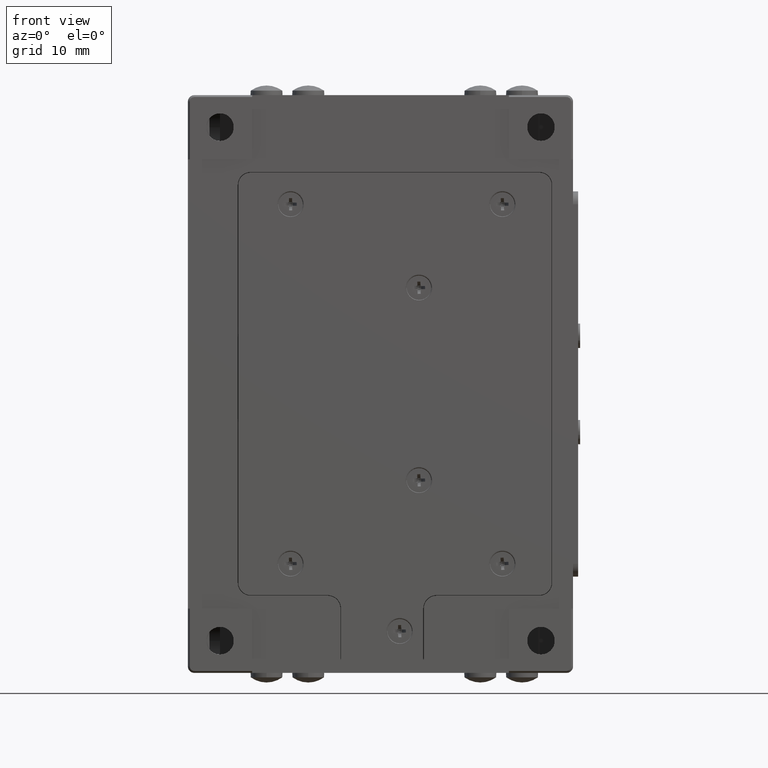
[diagram: clean part render]
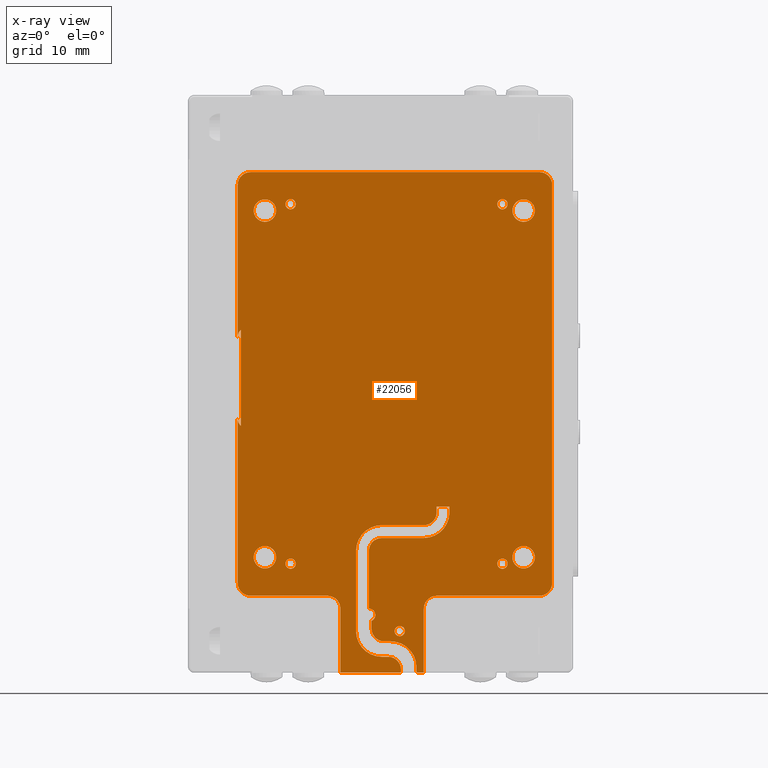
[diagram: x-ray — body ghosted, one internal face saturated and labeled with its STEP entity id]
A machine part, front view, then the same camera in x-ray: the body is ghosted and one INTERNAL B-rep face — a face not visible from any outside direction — is saturated and labeled: STEP entity #22056.
In plain terms, the highlighted planar face has unit normal (0, -1, 0).
Its self-contained STEP definition (entity closure, byte-faithful):
#69 = FACE_BOUND ( 'NONE', #16067, .T. ) ;
#123 = CARTESIAN_POINT ( 'NONE',  ( 33.20000000000000284, 3.250000000000000000, -87.50000000000000000 ) ) ;
#130 = AXIS2_PLACEMENT_3D ( 'NONE', #20657, #16018, #14065 ) ;
#148 = ORIENTED_EDGE ( 'NONE', *, *, #23933, .F. ) ;
#165 = LINE ( 'NONE', #19575, #1136 ) ;
#245 = CARTESIAN_POINT ( 'NONE',  ( 16.00000000000000000, 3.250000000000000000, -17.00000000000000000 ) ) ;
#367 = VECTOR ( 'NONE', #8052, 1000.000000000000000 ) ;
#460 = ORIENTED_EDGE ( 'NONE', *, *, #10625, .T. ) ;
#487 = DIRECTION ( 'NONE',  ( 0.000000000000000000, 0.000000000000000000, -1.000000000000000000 ) ) ;
#583 = EDGE_CURVE ( 'NONE', #7504, #11845, #14978, .T. ) ;
#597 = VERTEX_POINT ( 'NONE', #26319 ) ;
#640 = VERTEX_POINT ( 'NONE', #5210 ) ;
#665 = DIRECTION ( 'NONE',  ( 0.000000000000000000, 0.000000000000000000, -1.000000000000000000 ) ) ;
#711 = CARTESIAN_POINT ( 'NONE',  ( 7.750000000000000000, 3.250000000000000000, -76.00000000000000000 ) ) ;
#726 = CARTESIAN_POINT ( 'NONE',  ( 38.75000000000000000, 3.250000000000000000, -65.00000000000000000 ) ) ;
#840 = CARTESIAN_POINT ( 'NONE',  ( 21.75000000000000000, 3.250000000000000000, -78.00000000000000000 ) ) ;
#1053 = ORIENTED_EDGE ( 'NONE', *, *, #8525, .T. ) ;
#1060 = DIRECTION ( 'NONE',  ( 0.000000000000000000, -1.000000000000000000, 0.000000000000000000 ) ) ;
#1092 = CARTESIAN_POINT ( 'NONE',  ( 52.29999999999999716, 3.250000000000000000, -16.25000000000000000 ) ) ;
#1101 = CARTESIAN_POINT ( 'NONE',  ( 36.75000000000000000, 3.250000000000000000, -90.00000000000000000 ) ) ;
#1136 = VECTOR ( 'NONE', #13541, 1000.000000000000000 ) ;
#1143 = VECTOR ( 'NONE', #6798, 1000.000000000000000 ) ;
#1155 = CARTESIAN_POINT ( 'NONE',  ( 23.75000000000000000, 3.250000000000000000, -80.00000000000000000 ) ) ;
#1260 = CARTESIAN_POINT ( 'NONE',  ( 49.00000000000000000, 3.250000000000000000, -73.80000000000001137 ) ) ;
#1274 = DIRECTION ( 'NONE',  ( 0.000000000000000000, 0.000000000000000000, -1.000000000000000000 ) ) ;
#1344 = VERTEX_POINT ( 'NONE', #14890 ) ;
#1425 = ORIENTED_EDGE ( 'NONE', *, *, #7296, .F. ) ;
#1483 = DIRECTION ( 'NONE',  ( 0.000000000000000000, -1.000000000000000000, 0.000000000000000000 ) ) ;
#1540 = CARTESIAN_POINT ( 'NONE',  ( 36.75000000000000000, 3.250000000000000000, -67.00000000000000000 ) ) ;
#1792 = AXIS2_PLACEMENT_3D ( 'NONE', #15500, #4809, #8913 ) ;
#1818 = VERTEX_POINT ( 'NONE', #14314 ) ;
#1938 = VERTEX_POINT ( 'NONE', #13300 ) ;
#2022 = CARTESIAN_POINT ( 'NONE',  ( 35.89999999999999858, 3.250000000000000000, -90.00000000000000000 ) ) ;
#2039 = DIRECTION ( 'NONE',  ( 0.000000000000000000, 1.000000000000000000, 0.000000000000000000 ) ) ;
#2090 = DIRECTION ( 'NONE',  ( 0.000000000000000000, -1.000000000000000000, 0.000000000000000000 ) ) ;
#2354 = ORIENTED_EDGE ( 'NONE', *, *, #24428, .T. ) ;
#2382 = CIRCLE ( 'NONE', #5499, 1.500000000000001332 ) ;
#2489 = EDGE_CURVE ( 'NONE', #15399, #4415, #25739, .T. ) ;
#2508 = VERTEX_POINT ( 'NONE', #20242 ) ;
#2546 = DIRECTION ( 'NONE',  ( 0.000000000000000000, 0.000000000000000000, -1.000000000000000000 ) ) ;
#2560 = DIRECTION ( 'NONE',  ( 0.000000000000000000, 0.000000000000000000, -1.000000000000000000 ) ) ;
#2609 = EDGE_CURVE ( 'NONE', #3318, #13796, #23031, .T. ) ;
#2657 = AXIS2_PLACEMENT_3D ( 'NONE', #10025, #3811, #19149 ) ;
#2664 = EDGE_CURVE ( 'NONE', #7854, #24567, #11834, .T. ) ;
#2737 = DIRECTION ( 'NONE',  ( 0.000000000000000000, -1.000000000000000000, 0.000000000000000000 ) ) ;
#2774 = CARTESIAN_POINT ( 'NONE',  ( 12.00000000000000000, 3.250000000000000000, -70.25000000000000000 ) ) ;
#2998 = FACE_BOUND ( 'NONE', #20172, .T. ) ;
#3067 = ORIENTED_EDGE ( 'NONE', *, *, #23887, .T. ) ;
#3173 = DIRECTION ( 'NONE',  ( 0.000000000000000000, 0.000000000000000000, -1.000000000000000000 ) ) ;
#3250 = CARTESIAN_POINT ( 'NONE',  ( 52.29999999999999716, 3.250000000000000000, -72.00000000000000000 ) ) ;
#3299 = ORIENTED_EDGE ( 'NONE', *, *, #23348, .T. ) ;
#3305 = CARTESIAN_POINT ( 'NONE',  ( 23.75000000000000000, 3.250000000000000000, -90.00000000000000000 ) ) ;
#3318 = VERTEX_POINT ( 'NONE', #13722 ) ;
#3346 = CARTESIAN_POINT ( 'NONE',  ( 54.75000000000000000, 3.250000000000000000, -76.00000000000000000 ) ) ;
#3382 = AXIS2_PLACEMENT_3D ( 'NONE', #3250, #27034, #22951 ) ;
#3404 = AXIS2_PLACEMENT_3D ( 'NONE', #26242, #24548, #13595 ) ;
#3406 = DIRECTION ( 'NONE',  ( -2.102695122396129669E-16, 0.000000000000000000, 1.000000000000000000 ) ) ;
#3498 = CARTESIAN_POINT ( 'NONE',  ( 49.00000000000000000, 3.250000000000000000, -17.00000000000000000 ) ) ;
#3550 = ORIENTED_EDGE ( 'NONE', *, *, #14088, .F. ) ;
#3739 = EDGE_CURVE ( 'NONE', #13203, #640, #18398, .T. ) ;
#3747 = LINE ( 'NONE', #7560, #4111 ) ;
#3748 = VERTEX_POINT ( 'NONE', #6505 ) ;
#3782 = DIRECTION ( 'NONE',  ( 1.000000000000000000, 0.000000000000000000, 0.000000000000000000 ) ) ;
#3811 = DIRECTION ( 'NONE',  ( 0.000000000000000000, 1.000000000000000000, 0.000000000000000000 ) ) ;
#3982 = EDGE_CURVE ( 'NONE', #24400, #4739, #8047, .T. ) ;
#4059 = DIRECTION ( 'NONE',  ( 0.000000000000000000, 0.000000000000000000, -1.000000000000000000 ) ) ;
#4092 = CARTESIAN_POINT ( 'NONE',  ( 28.19999999999999929, 3.250000000000000000, -69.00000000000000000 ) ) ;
#4111 = VECTOR ( 'NONE', #25134, 1000.000000000000000 ) ;
#4331 = CARTESIAN_POINT ( 'NONE',  ( 54.75000000000000000, 3.250000000000000000, -78.00000000000000000 ) ) ;
#4415 = VERTEX_POINT ( 'NONE', #5898 ) ;
#4432 = LINE ( 'NONE', #16962, #27700 ) ;
#4478 = ORIENTED_EDGE ( 'NONE', *, *, #22900, .F. ) ;
#4595 = DIRECTION ( 'NONE',  ( 0.000000000000000000, 0.000000000000000000, -1.000000000000000000 ) ) ;
#4650 = CARTESIAN_POINT ( 'NONE',  ( 9.750000000000000000, 3.250000000000000000, -78.00000000000000000 ) ) ;
#4739 = VERTEX_POINT ( 'NONE', #19653 ) ;
#4758 = EDGE_LOOP ( 'NONE', ( #148, #9787 ) ) ;
#4790 = ORIENTED_EDGE ( 'NONE', *, *, #16657, .F. ) ;
#4809 = DIRECTION ( 'NONE',  ( 0.000000000000000000, -1.000000000000000000, 0.000000000000000000 ) ) ;
#5020 = ORIENTED_EDGE ( 'NONE', *, *, #16351, .F. ) ;
#5115 = ORIENTED_EDGE ( 'NONE', *, *, #12979, .F. ) ;
#5146 = CIRCLE ( 'NONE', #27655, 1.750000000000001554 ) ;
#5210 = CARTESIAN_POINT ( 'NONE',  ( 49.00000000000000000, 3.250000000000000000, -72.20000000000000284 ) ) ;
#5496 = EDGE_CURVE ( 'NONE', #1344, #13234, #25869, .T. ) ;
#5499 = AXIS2_PLACEMENT_3D ( 'NONE', #25104, #18216, #22441 ) ;
#5557 = EDGE_CURVE ( 'NONE', #8955, #25053, #23907, .T. ) ;
#5561 = CARTESIAN_POINT ( 'NONE',  ( 56.75000000000000000, 3.250000000000000000, -12.00000000000000000 ) ) ;
#5570 = CIRCLE ( 'NONE', #14119, 0.7999999999999882760 ) ;
#5616 = CARTESIAN_POINT ( 'NONE',  ( 38.75000000000000000, 3.250000000000000000, -80.00000000000000000 ) ) ;
#5622 = VERTEX_POINT ( 'NONE', #11284 ) ;
#5628 = CIRCLE ( 'NONE', #11437, 0.7999999999999951594 ) ;
#5646 = CARTESIAN_POINT ( 'NONE',  ( 36.75000000000000000, 3.250000000000000000, -80.00000000000000000 ) ) ;
#5687 = CARTESIAN_POINT ( 'NONE',  ( 33.00000000000000000, 3.250000000000000000, -82.69999999999998863 ) ) ;
#5735 = VERTEX_POINT ( 'NONE', #26298 ) ;
#5748 = DIRECTION ( 'NONE',  ( 1.182766006347821876E-16, 0.000000000000000000, -1.000000000000000000 ) ) ;
#5812 = AXIS2_PLACEMENT_3D ( 'NONE', #14295, #1483, #665 ) ;
#5814 = EDGE_CURVE ( 'NONE', #15601, #10556, #18704, .T. ) ;
#5898 = CARTESIAN_POINT ( 'NONE',  ( 33.00000000000000000, 3.250000000000000000, -84.29999999999999716 ) ) ;
#5926 = ORIENTED_EDGE ( 'NONE', *, *, #26071, .T. ) ;
#6008 = CIRCLE ( 'NONE', #26656, 1.750000000000001554 ) ;
#6018 = EDGE_LOOP ( 'NONE', ( #15100, #17256 ) ) ;
#6048 = EDGE_CURVE ( 'NONE', #21096, #3748, #8286, .T. ) ;
#6090 = CARTESIAN_POINT ( 'NONE',  ( 7.750000000000000000, 3.250000000000000000, -12.00000000000000000 ) ) ;
#6131 = CARTESIAN_POINT ( 'NONE',  ( 52.29999999999999716, 3.250000000000000000, -72.00000000000000000 ) ) ;
#6224 = DIRECTION ( 'NONE',  ( 0.000000000000000000, -1.000000000000000000, 0.000000000000000000 ) ) ;
#6304 = LINE ( 'NONE', #19094, #22512 ) ;
#6332 = EDGE_CURVE ( 'NONE', #20941, #17381, #3747, .T. ) ;
#6392 = DIRECTION ( 'NONE',  ( 0.000000000000000000, 0.000000000000000000, -1.000000000000000000 ) ) ;
#6429 = DIRECTION ( 'NONE',  ( 0.000000000000000000, 0.000000000000000000, -1.000000000000000000 ) ) ;
#6505 = CARTESIAN_POINT ( 'NONE',  ( 30.59999999999999787, 3.250000000000000000, -85.09999999999999432 ) ) ;
#6565 = DIRECTION ( 'NONE',  ( 1.000000000000000000, 0.000000000000000000, 0.000000000000000000 ) ) ;
#6620 = DIRECTION ( 'NONE',  ( 0.000000000000000000, 0.000000000000000000, -1.000000000000000000 ) ) ;
#6703 = CIRCLE ( 'NONE', #5812, 1.750000000000001554 ) ;
#6747 = CARTESIAN_POINT ( 'NONE',  ( 28.60000000000000142, 3.250000000000000000, -85.09999999999999432 ) ) ;
#6779 = CARTESIAN_POINT ( 'NONE',  ( 33.00000000000000000, 3.250000000000000000, -83.50000000000000000 ) ) ;
#6786 = LINE ( 'NONE', #10765, #18775 ) ;
#6798 = DIRECTION ( 'NONE',  ( 0.000000000000000000, 0.000000000000000000, -1.000000000000000000 ) ) ;
#6819 = ORIENTED_EDGE ( 'NONE', *, *, #9699, .T. ) ;
#6843 = LINE ( 'NONE', #26253, #12601 ) ;
#6861 = EDGE_CURVE ( 'NONE', #640, #13203, #23450, .T. ) ;
#6939 = DIRECTION ( 'NONE',  ( 0.000000000000000000, -1.000000000000000000, 0.000000000000000000 ) ) ;
#7039 = VECTOR ( 'NONE', #27100, 1000.000000000000000 ) ;
#7043 = EDGE_LOOP ( 'NONE', ( #9087, #23175, #20224, #13014, #23721, #14462, #8447, #3550, #5115, #15454, #18654, #9834, #18814, #20067, #22531, #22809, #16986, #8710, #10809, #1053, #6819, #21734, #3299, #20520, #8915, #27125, #26897, #460, #5926, #10007, #21724, #24292, #19964, #7902, #5020, #11984, #1425, #21885, #13964, #3067, #15577, #2354 ) ) ;
#7055 = DIRECTION ( 'NONE',  ( 0.000000000000000000, 1.000000000000000000, 0.000000000000000000 ) ) ;
#7113 = CARTESIAN_POINT ( 'NONE',  ( 12.00000000000000000, 3.250000000000000000, -73.75000000000000000 ) ) ;
#7126 = EDGE_CURVE ( 'NONE', #27404, #10643, #10413, .T. ) ;
#7296 = EDGE_CURVE ( 'NONE', #1344, #24567, #19522, .T. ) ;
#7355 = VERTEX_POINT ( 'NONE', #4331 ) ;
#7426 = DIRECTION ( 'NONE',  ( 0.000000000000000000, -1.000000000000000000, 0.000000000000000000 ) ) ;
#7504 = VERTEX_POINT ( 'NONE', #9254 ) ;
#7560 = CARTESIAN_POINT ( 'NONE',  ( 23.75000000000000000, 3.250000000000000000, -90.00000000000000000 ) ) ;
#7633 = EDGE_CURVE ( 'NONE', #26443, #25547, #24166, .T. ) ;
#7686 = LINE ( 'NONE', #5561, #7039 ) ;
#7728 = DIRECTION ( 'NONE',  ( 0.000000000000000000, 0.000000000000000000, -1.000000000000000000 ) ) ;
#7758 = LINE ( 'NONE', #7908, #14018 ) ;
#7806 = CARTESIAN_POINT ( 'NONE',  ( 30.59999999999999787, 3.250000000000000000, -83.09999999999999432 ) ) ;
#7854 = VERTEX_POINT ( 'NONE', #21318 ) ;
#7902 = ORIENTED_EDGE ( 'NONE', *, *, #583, .T. ) ;
#7908 = CARTESIAN_POINT ( 'NONE',  ( 56.75000000000000000, 3.250000000000000000, -78.00000000000000000 ) ) ;
#7934 = DIRECTION ( 'NONE',  ( 0.000000000000000000, -1.000000000000000000, 0.000000000000000000 ) ) ;
#7959 = DIRECTION ( 'NONE',  ( 0.000000000000000000, -1.000000000000000000, 0.000000000000000000 ) ) ;
#8001 = LINE ( 'NONE', #16999, #8590 ) ;
#8008 = CARTESIAN_POINT ( 'NONE',  ( 26.20000000000000284, 3.250000000000000000, -83.50000000000000000 ) ) ;
#8047 = CIRCLE ( 'NONE', #2657, 1.500000000000001332 ) ;
#8052 = DIRECTION ( 'NONE',  ( 0.000000000000000000, 0.000000000000000000, 1.000000000000000000 ) ) ;
#8109 = EDGE_CURVE ( 'NONE', #11901, #1818, #2382, .T. ) ;
#8190 = VERTEX_POINT ( 'NONE', #20602 ) ;
#8286 = LINE ( 'NONE', #16859, #8767 ) ;
#8367 = AXIS2_PLACEMENT_3D ( 'NONE', #23504, #10589, #23374 ) ;
#8440 = LINE ( 'NONE', #21104, #16987 ) ;
#8447 = ORIENTED_EDGE ( 'NONE', *, *, #20987, .F. ) ;
#8476 = CARTESIAN_POINT ( 'NONE',  ( 12.00000000000000000, 3.250000000000000000, -19.75000000000000000 ) ) ;
#8486 = CARTESIAN_POINT ( 'NONE',  ( 16.00000000000000000, 3.250000000000000000, -17.80000000000000071 ) ) ;
#8517 = DIRECTION ( 'NONE',  ( 0.000000000000000000, -1.000000000000000000, 0.000000000000000000 ) ) ;
#8525 = EDGE_CURVE ( 'NONE', #22054, #20841, #7758, .T. ) ;
#8570 = ORIENTED_EDGE ( 'NONE', *, *, #7126, .F. ) ;
#8590 = VECTOR ( 'NONE', #5748, 1000.000000000000000 ) ;
#8648 = FACE_BOUND ( 'NONE', #20744, .T. ) ;
#8673 = ORIENTED_EDGE ( 'NONE', *, *, #25352, .F. ) ;
#8686 = DIRECTION ( 'NONE',  ( 0.000000000000000000, -1.000000000000000000, 0.000000000000000000 ) ) ;
#8710 = ORIENTED_EDGE ( 'NONE', *, *, #10627, .T. ) ;
#8764 = CIRCLE ( 'NONE', #13713, 0.9999999999999870104 ) ;
#8767 = VECTOR ( 'NONE', #21350, 1000.000000000000000 ) ;
#8770 = AXIS2_PLACEMENT_3D ( 'NONE', #19196, #8517, #17090 ) ;
#8787 = CIRCLE ( 'NONE', #24500, 0.7999999999999882760 ) ;
#8870 = LINE ( 'NONE', #6747, #14300 ) ;
#8877 = DIRECTION ( 'NONE',  ( 1.000000000000000000, 0.000000000000000000, 0.000000000000000000 ) ) ;
#8913 = DIRECTION ( 'NONE',  ( 0.000000000000000000, 0.000000000000000000, -1.000000000000000000 ) ) ;
#8915 = ORIENTED_EDGE ( 'NONE', *, *, #3982, .T. ) ;
#8955 = VERTEX_POINT ( 'NONE', #12684 ) ;
#9068 = DIRECTION ( 'NONE',  ( 0.000000000000000000, 0.000000000000000000, -1.000000000000000000 ) ) ;
#9087 = ORIENTED_EDGE ( 'NONE', *, *, #23311, .F. ) ;
#9175 = VERTEX_POINT ( 'NONE', #1092 ) ;
#9225 = DIRECTION ( 'NONE',  ( 0.000000000000000000, 0.000000000000000000, -1.000000000000000000 ) ) ;
#9254 = CARTESIAN_POINT ( 'NONE',  ( 32.89999999999999858, 3.250000000000000000, -90.00000000000000000 ) ) ;
#9255 = AXIS2_PLACEMENT_3D ( 'NONE', #27754, #6224, #2546 ) ;
#9271 = VECTOR ( 'NONE', #12245, 1000.000000000000000 ) ;
#9404 = DIRECTION ( 'NONE',  ( 1.000000000000000000, 0.000000000000000000, 0.000000000000000000 ) ) ;
#9535 = VERTEX_POINT ( 'NONE', #11086 ) ;
#9699 = EDGE_CURVE ( 'NONE', #20841, #11198, #14648, .T. ) ;
#9723 = ORIENTED_EDGE ( 'NONE', *, *, #26928, .F. ) ;
#9751 = EDGE_CURVE ( 'NONE', #21096, #23398, #27616, .T. ) ;
#9767 = VECTOR ( 'NONE', #25896, 1000.000000000000000 ) ;
#9787 = ORIENTED_EDGE ( 'NONE', *, *, #2489, .F. ) ;
#9820 = VERTEX_POINT ( 'NONE', #7113 ) ;
#9834 = ORIENTED_EDGE ( 'NONE', *, *, #9751, .T. ) ;
#10007 = ORIENTED_EDGE ( 'NONE', *, *, #16395, .T. ) ;
#10025 = CARTESIAN_POINT ( 'NONE',  ( 9.250000000000000000, 3.250000000000000000, -37.67999999999999972 ) ) ;
#10141 = VECTOR ( 'NONE', #19986, 1000.000000000000000 ) ;
#10208 = ORIENTED_EDGE ( 'NONE', *, *, #6861, .F. ) ;
#10248 = ORIENTED_EDGE ( 'NONE', *, *, #19112, .F. ) ;
#10270 = CARTESIAN_POINT ( 'NONE',  ( 12.00000000000000000, 3.250000000000000000, -16.25000000000000000 ) ) ;
#10413 = CIRCLE ( 'NONE', #13990, 1.750000000000001554 ) ;
#10545 = DIRECTION ( 'NONE',  ( 1.000000000000000000, 0.000000000000000000, 0.000000000000000000 ) ) ;
#10556 = VERTEX_POINT ( 'NONE', #1101 ) ;
#10561 = EDGE_CURVE ( 'NONE', #11687, #15601, #17579, .T. ) ;
#10589 = DIRECTION ( 'NONE',  ( 0.000000000000000000, -1.000000000000000000, 0.000000000000000000 ) ) ;
#10625 = EDGE_CURVE ( 'NONE', #1818, #12687, #8001, .T. ) ;
#10627 = EDGE_CURVE ( 'NONE', #14441, #7355, #6304, .T. ) ;
#10638 = AXIS2_PLACEMENT_3D ( 'NONE', #19205, #25662, #6392 ) ;
#10643 = VERTEX_POINT ( 'NONE', #10270 ) ;
#10650 = DIRECTION ( 'NONE',  ( 0.000000000000000000, -1.000000000000000000, 0.000000000000000000 ) ) ;
#10684 = AXIS2_PLACEMENT_3D ( 'NONE', #27207, #7934, #16791 ) ;
#10699 = CIRCLE ( 'NONE', #20546, 2.000000000000001776 ) ;
#10704 = VECTOR ( 'NONE', #26907, 1000.000000000000000 ) ;
#10727 = CARTESIAN_POINT ( 'NONE',  ( 30.20000000000000284, 3.250000000000000000, -83.50000000000000000 ) ) ;
#10765 = CARTESIAN_POINT ( 'NONE',  ( 35.60000000000000142, 3.250000000000000000, -90.00000000000000000 ) ) ;
#10790 = FACE_BOUND ( 'NONE', #18006, .T. ) ;
#10809 = ORIENTED_EDGE ( 'NONE', *, *, #18185, .T. ) ;
#10914 = CARTESIAN_POINT ( 'NONE',  ( 56.75000000000000000, 3.250000000000000000, -76.00000000000000000 ) ) ;
#10930 = AXIS2_PLACEMENT_3D ( 'NONE', #18275, #18416, #27000 ) ;
#10956 = CARTESIAN_POINT ( 'NONE',  ( 30.20000000000000284, 3.250000000000000000, -71.00000000000000000 ) ) ;
#11017 = CARTESIAN_POINT ( 'NONE',  ( 28.19999999999999929, 3.250000000000000000, -71.00000000000000000 ) ) ;
#11048 = CARTESIAN_POINT ( 'NONE',  ( 0.000000000000000000, 3.250000000000000000, 0.000000000000000000 ) ) ;
#11086 = CARTESIAN_POINT ( 'NONE',  ( 16.00000000000000000, 3.250000000000000000, -73.80000000000001137 ) ) ;
#11098 = EDGE_CURVE ( 'NONE', #8190, #5735, #18057, .T. ) ;
#11198 = VERTEX_POINT ( 'NONE', #23543 ) ;
#11229 = AXIS2_PLACEMENT_3D ( 'NONE', #3346, #7426, #18127 ) ;
#11284 = CARTESIAN_POINT ( 'NONE',  ( 28.19999999999999929, 3.250000000000000000, -80.00000000000000000 ) ) ;
#11407 = CARTESIAN_POINT ( 'NONE',  ( 7.750000000000000000, 3.250000000000000000, -37.67999999999999972 ) ) ;
#11431 = DIRECTION ( 'NONE',  ( 0.000000000000000000, 0.000000000000000000, -1.000000000000000000 ) ) ;
#11437 = AXIS2_PLACEMENT_3D ( 'NONE', #6779, #21824, #2560 ) ;
#11473 = VERTEX_POINT ( 'NONE', #23254 ) ;
#11514 = VERTEX_POINT ( 'NONE', #11017 ) ;
#11527 = AXIS2_PLACEMENT_3D ( 'NONE', #24113, #10650, #9068 ) ;
#11552 = DIRECTION ( 'NONE',  ( 0.000000000000000000, 0.000000000000000000, -1.000000000000000000 ) ) ;
#11559 = VERTEX_POINT ( 'NONE', #27623 ) ;
#11617 = PLANE ( 'NONE',  #13695 ) ;
#11687 = VERTEX_POINT ( 'NONE', #19720 ) ;
#11690 = DIRECTION ( 'NONE',  ( 0.000000000000000000, -1.000000000000000000, 0.000000000000000000 ) ) ;
#11695 = CIRCLE ( 'NONE', #11229, 2.000000000000001776 ) ;
#11752 = VECTOR ( 'NONE', #10545, 1000.000000000000000 ) ;
#11824 = CARTESIAN_POINT ( 'NONE',  ( 36.75000000000000000, 3.250000000000000000, -65.00000000000000000 ) ) ;
#11834 = CIRCLE ( 'NONE', #23491, 2.000000000000001776 ) ;
#11835 = DIRECTION ( 'NONE',  ( 0.000000000000000000, -1.000000000000000000, 0.000000000000000000 ) ) ;
#11845 = VERTEX_POINT ( 'NONE', #12415 ) ;
#11901 = VERTEX_POINT ( 'NONE', #16318 ) ;
#11984 = ORIENTED_EDGE ( 'NONE', *, *, #2664, .T. ) ;
#12005 = LINE ( 'NONE', #23230, #367 ) ;
#12154 = EDGE_CURVE ( 'NONE', #11198, #11473, #7686, .T. ) ;
#12156 = CIRCLE ( 'NONE', #15726, 2.000000000000001776 ) ;
#12245 = DIRECTION ( 'NONE',  ( 1.000000000000000000, 0.000000000000000000, 0.000000000000000000 ) ) ;
#12373 = DIRECTION ( 'NONE',  ( 0.000000000000000000, -1.000000000000000000, 0.000000000000000000 ) ) ;
#12415 = CARTESIAN_POINT ( 'NONE',  ( 33.20000000000000284, 3.250000000000000000, -89.70000000000000284 ) ) ;
#12554 = CARTESIAN_POINT ( 'NONE',  ( 21.75000000000000000, 3.250000000000000000, -80.00000000000000000 ) ) ;
#12601 = VECTOR ( 'NONE', #6565, 1000.000000000000000 ) ;
#12684 = CARTESIAN_POINT ( 'NONE',  ( 30.20000000000000284, 3.250000000000000000, -69.00000000000000000 ) ) ;
#12687 = VERTEX_POINT ( 'NONE', #711 ) ;
#12765 = CIRCLE ( 'NONE', #27131, 2.000000000000001776 ) ;
#12806 = EDGE_CURVE ( 'NONE', #24731, #26756, #13398, .T. ) ;
#12871 = EDGE_LOOP ( 'NONE', ( #9723, #4790 ) ) ;
#12911 = CARTESIAN_POINT ( 'NONE',  ( 38.75000000000000000, 3.250000000000000000, -64.12938333263569746 ) ) ;
#12979 = EDGE_CURVE ( 'NONE', #13940, #597, #8870, .T. ) ;
#13014 = ORIENTED_EDGE ( 'NONE', *, *, #17745, .T. ) ;
#13037 = CIRCLE ( 'NONE', #22450, 0.7999999999999882760 ) ;
#13104 = CARTESIAN_POINT ( 'NONE',  ( 49.00000000000000000, 3.250000000000000000, -73.00000000000000000 ) ) ;
#13146 = VERTEX_POINT ( 'NONE', #840 ) ;
#13203 = VERTEX_POINT ( 'NONE', #1260 ) ;
#13234 = VERTEX_POINT ( 'NONE', #8008 ) ;
#13241 = CARTESIAN_POINT ( 'NONE',  ( 26.20000000000000284, 3.250000000000000000, -67.00000000000000000 ) ) ;
#13262 = CARTESIAN_POINT ( 'NONE',  ( 56.75000000000000000, 3.250000000000000000, -14.00000000000000000 ) ) ;
#13300 = CARTESIAN_POINT ( 'NONE',  ( 16.00000000000000000, 3.250000000000000000, -16.19999999999999929 ) ) ;
#13398 = LINE ( 'NONE', #13241, #9767 ) ;
#13459 = ORIENTED_EDGE ( 'NONE', *, *, #20686, .F. ) ;
#13464 = CARTESIAN_POINT ( 'NONE',  ( 52.29999999999999716, 3.250000000000000000, -18.00000000000000000 ) ) ;
#13541 = DIRECTION ( 'NONE',  ( 0.000000000000000000, 0.000000000000000000, 1.000000000000000000 ) ) ;
#13595 = DIRECTION ( 'NONE',  ( 0.000000000000000000, 0.000000000000000000, -1.000000000000000000 ) ) ;
#13695 = AXIS2_PLACEMENT_3D ( 'NONE', #11048, #6939, #487 ) ;
#13713 = AXIS2_PLACEMENT_3D ( 'NONE', #20308, #24681, #24532 ) ;
#13722 = CARTESIAN_POINT ( 'NONE',  ( 49.00000000000000000, 3.250000000000000000, -16.19999999999999929 ) ) ;
#13724 = CIRCLE ( 'NONE', #3382, 1.750000000000001554 ) ;
#13796 = VERTEX_POINT ( 'NONE', #15129 ) ;
#13940 = VERTEX_POINT ( 'NONE', #15683 ) ;
#13964 = ORIENTED_EDGE ( 'NONE', *, *, #14378, .F. ) ;
#13990 = AXIS2_PLACEMENT_3D ( 'NONE', #26877, #11835, #22504 ) ;
#13999 = EDGE_CURVE ( 'NONE', #9175, #11559, #5146, .T. ) ;
#14018 = VECTOR ( 'NONE', #3406, 1000.000000000000000 ) ;
#14065 = DIRECTION ( 'NONE',  ( 0.000000000000000000, 0.000000000000000000, -1.000000000000000000 ) ) ;
#14088 = EDGE_CURVE ( 'NONE', #597, #5622, #8764, .T. ) ;
#14101 = LINE ( 'NONE', #18318, #10704 ) ;
#14119 = AXIS2_PLACEMENT_3D ( 'NONE', #3498, #18276, #16019 ) ;
#14172 = EDGE_LOOP ( 'NONE', ( #18718, #10208 ) ) ;
#14175 = VERTEX_POINT ( 'NONE', #27366 ) ;
#14295 = CARTESIAN_POINT ( 'NONE',  ( 12.00000000000000000, 3.250000000000000000, -72.00000000000000000 ) ) ;
#14300 = VECTOR ( 'NONE', #15334, 1000.000000000000000 ) ;
#14314 = CARTESIAN_POINT ( 'NONE',  ( 7.750000000000000000, 3.250000000000000000, -50.39999999934259733 ) ) ;
#14354 = CARTESIAN_POINT ( 'NONE',  ( 31.19999999999999929, 3.250000000000000000, -87.50000000000000000 ) ) ;
#14378 = EDGE_CURVE ( 'NONE', #2508, #13234, #15374, .T. ) ;
#14441 = VERTEX_POINT ( 'NONE', #20697 ) ;
#14446 = VERTEX_POINT ( 'NONE', #5646 ) ;
#14450 = AXIS2_PLACEMENT_3D ( 'NONE', #15869, #11690, #20236 ) ;
#14462 = ORIENTED_EDGE ( 'NONE', *, *, #18479, .T. ) ;
#14643 = VECTOR ( 'NONE', #8877, 1000.000000000000000 ) ;
#14648 = CIRCLE ( 'NONE', #3404, 2.000000000000000000 ) ;
#14827 = DIRECTION ( 'NONE',  ( 1.182766006347821876E-16, 0.000000000000000000, -1.000000000000000000 ) ) ;
#14845 = CARTESIAN_POINT ( 'NONE',  ( 30.20000000000000284, 3.250000000000000000, -67.00000000000000000 ) ) ;
#14848 = AXIS2_PLACEMENT_3D ( 'NONE', #23834, #2039, #19751 ) ;
#14890 = CARTESIAN_POINT ( 'NONE',  ( 30.20000000000000284, 3.250000000000000000, -87.50000000000000000 ) ) ;
#14978 = CIRCLE ( 'NONE', #22151, 0.2999999999999947153 ) ;
#15010 = DIRECTION ( 'NONE',  ( 0.000000000000000000, -1.000000000000000000, 0.000000000000000000 ) ) ;
#15100 = ORIENTED_EDGE ( 'NONE', *, *, #26541, .F. ) ;
#15129 = CARTESIAN_POINT ( 'NONE',  ( 49.00000000000000000, 3.250000000000000000, -17.80000000000000071 ) ) ;
#15334 = DIRECTION ( 'NONE',  ( 0.000000000000000000, 0.000000000000000000, 1.000000000000000000 ) ) ;
#15343 = DIRECTION ( 'NONE',  ( 0.000000000000000000, -1.000000000000000000, 0.000000000000000000 ) ) ;
#15374 = LINE ( 'NONE', #23938, #10141 ) ;
#15399 = VERTEX_POINT ( 'NONE', #5687 ) ;
#15454 = ORIENTED_EDGE ( 'NONE', *, *, #21817, .T. ) ;
#15468 = CIRCLE ( 'NONE', #20865, 2.000000000000001776 ) ;
#15500 = CARTESIAN_POINT ( 'NONE',  ( 49.00000000000000000, 3.250000000000000000, -73.00000000000000000 ) ) ;
#15577 = ORIENTED_EDGE ( 'NONE', *, *, #12806, .F. ) ;
#15601 = VERTEX_POINT ( 'NONE', #2022 ) ;
#15637 = CARTESIAN_POINT ( 'NONE',  ( 32.89999999999999858, 3.250000000000000000, -89.70000000000000284 ) ) ;
#15643 = CARTESIAN_POINT ( 'NONE',  ( 30.20000000000000284, 3.250000000000000000, -71.00000000000000000 ) ) ;
#15671 = FACE_BOUND ( 'NONE', #12871, .T. ) ;
#15683 = CARTESIAN_POINT ( 'NONE',  ( 28.60000000000000142, 3.250000000000000000, -83.09999999999999432 ) ) ;
#15726 = AXIS2_PLACEMENT_3D ( 'NONE', #10956, #15010, #6429 ) ;
#15805 = ORIENTED_EDGE ( 'NONE', *, *, #17116, .F. ) ;
#15869 = CARTESIAN_POINT ( 'NONE',  ( 35.89999999999999858, 3.250000000000000000, -89.70000000000000284 ) ) ;
#16018 = DIRECTION ( 'NONE',  ( 0.000000000000000000, -1.000000000000000000, 0.000000000000000000 ) ) ;
#16019 = DIRECTION ( 'NONE',  ( 0.000000000000000000, 0.000000000000000000, -1.000000000000000000 ) ) ;
#16067 = EDGE_LOOP ( 'NONE', ( #8673, #18999 ) ) ;
#16117 = DIRECTION ( 'NONE',  ( 0.000000000000000000, 1.000000000000000000, 0.000000000000000000 ) ) ;
#16240 = EDGE_CURVE ( 'NONE', #14446, #14441, #10699, .T. ) ;
#16318 = CARTESIAN_POINT ( 'NONE',  ( 8.248823012634890262, 3.250000000000000000, -51.51698014239369883 ) ) ;
#16351 = EDGE_CURVE ( 'NONE', #7854, #11845, #22505, .T. ) ;
#16395 = EDGE_CURVE ( 'NONE', #22549, #13146, #8440, .T. ) ;
#16613 = VERTEX_POINT ( 'NONE', #2774 ) ;
#16657 = EDGE_CURVE ( 'NONE', #16613, #9820, #6703, .T. ) ;
#16710 = DIRECTION ( 'NONE',  ( 0.000000000000000000, 0.000000000000000000, -1.000000000000000000 ) ) ;
#16791 = DIRECTION ( 'NONE',  ( 0.000000000000000000, 0.000000000000000000, -1.000000000000000000 ) ) ;
#16858 = ORIENTED_EDGE ( 'NONE', *, *, #2609, .F. ) ;
#16859 = CARTESIAN_POINT ( 'NONE',  ( 35.60000000000000142, 3.250000000000000000, -85.09999999999999432 ) ) ;
#16872 = DIRECTION ( 'NONE',  ( 0.000000000000000000, 0.000000000000000000, -1.000000000000000000 ) ) ;
#16898 = DIRECTION ( 'NONE',  ( 0.000000000000000000, 0.000000000000000000, -1.000000000000000000 ) ) ;
#16962 = CARTESIAN_POINT ( 'NONE',  ( 38.75000000000000000, 3.250000000000000000, -67.00000000000000000 ) ) ;
#16986 = ORIENTED_EDGE ( 'NONE', *, *, #16240, .T. ) ;
#16987 = VECTOR ( 'NONE', #3782, 1000.000000000000000 ) ;
#16999 = CARTESIAN_POINT ( 'NONE',  ( 7.750000000000000000, 3.250000000000000000, -12.00000000000000000 ) ) ;
#17090 = DIRECTION ( 'NONE',  ( 0.000000000000000000, 0.000000000000000000, -1.000000000000000000 ) ) ;
#17097 = FACE_BOUND ( 'NONE', #6018, .T. ) ;
#17116 = EDGE_CURVE ( 'NONE', #22327, #1938, #13037, .T. ) ;
#17175 = CARTESIAN_POINT ( 'NONE',  ( 40.75000000000000000, 3.250000000000000000, -64.12938333263569746 ) ) ;
#17201 = CARTESIAN_POINT ( 'NONE',  ( 36.75000000000000000, 3.250000000000000000, -69.00000000000000000 ) ) ;
#17213 = CARTESIAN_POINT ( 'NONE',  ( 8.248823012634890262, 3.250000000000000000, -64.12938333263569746 ) ) ;
#17256 = ORIENTED_EDGE ( 'NONE', *, *, #13999, .F. ) ;
#17344 = AXIS2_PLACEMENT_3D ( 'NONE', #10727, #25469, #16898 ) ;
#17381 = VERTEX_POINT ( 'NONE', #3305 ) ;
#17521 = CARTESIAN_POINT ( 'NONE',  ( 35.60000000000000142, 3.250000000000000000, -89.09999999999999432 ) ) ;
#17528 = DIRECTION ( 'NONE',  ( 0.000000000000000000, 0.000000000000000000, -1.000000000000000000 ) ) ;
#17579 = CIRCLE ( 'NONE', #14450, 0.2999999999999947153 ) ;
#17607 = DIRECTION ( 'NONE',  ( 0.000000000000000000, -1.000000000000000000, 0.000000000000000000 ) ) ;
#17745 = EDGE_CURVE ( 'NONE', #14175, #25053, #23385, .T. ) ;
#17763 = CIRCLE ( 'NONE', #25785, 4.000000000000003553 ) ;
#18006 = EDGE_LOOP ( 'NONE', ( #8570, #10248 ) ) ;
#18057 = CIRCLE ( 'NONE', #26589, 1.750000000000001554 ) ;
#18127 = DIRECTION ( 'NONE',  ( 0.000000000000000000, 0.000000000000000000, -1.000000000000000000 ) ) ;
#18185 = EDGE_CURVE ( 'NONE', #7355, #22054, #11695, .T. ) ;
#18216 = DIRECTION ( 'NONE',  ( 0.000000000000000000, 1.000000000000000000, 0.000000000000000000 ) ) ;
#18275 = CARTESIAN_POINT ( 'NONE',  ( 49.00000000000000000, 3.250000000000000000, -17.00000000000000000 ) ) ;
#18276 = DIRECTION ( 'NONE',  ( 0.000000000000000000, -1.000000000000000000, 0.000000000000000000 ) ) ;
#18282 = CARTESIAN_POINT ( 'NONE',  ( 23.75000000000000000, 3.250000000000000000, -90.00000000000000000 ) ) ;
#18318 = CARTESIAN_POINT ( 'NONE',  ( 28.19999999999999929, 3.250000000000000000, -80.00000000000000000 ) ) ;
#18398 = CIRCLE ( 'NONE', #1792, 0.7999999999999951594 ) ;
#18416 = DIRECTION ( 'NONE',  ( 0.000000000000000000, -1.000000000000000000, 0.000000000000000000 ) ) ;
#18479 = EDGE_CURVE ( 'NONE', #8955, #11514, #12156, .T. ) ;
#18507 = EDGE_CURVE ( 'NONE', #17381, #7504, #6843, .T. ) ;
#18549 = DIRECTION ( 'NONE',  ( 0.000000000000000000, -1.000000000000000000, 0.000000000000000000 ) ) ;
#18562 = CARTESIAN_POINT ( 'NONE',  ( 16.00000000000000000, 3.250000000000000000, -72.20000000000000284 ) ) ;
#18654 = ORIENTED_EDGE ( 'NONE', *, *, #6048, .F. ) ;
#18704 = LINE ( 'NONE', #18282, #9271 ) ;
#18718 = ORIENTED_EDGE ( 'NONE', *, *, #3739, .F. ) ;
#18736 = CARTESIAN_POINT ( 'NONE',  ( 31.60000000000000142, 3.250000000000000000, -85.09999999999999432 ) ) ;
#18775 = VECTOR ( 'NONE', #19313, 1000.000000000000000 ) ;
#18814 = ORIENTED_EDGE ( 'NONE', *, *, #20878, .F. ) ;
#18860 = DIRECTION ( 'NONE',  ( 0.000000000000000000, 1.000000000000000000, 0.000000000000000000 ) ) ;
#18999 = ORIENTED_EDGE ( 'NONE', *, *, #11098, .F. ) ;
#19094 = CARTESIAN_POINT ( 'NONE',  ( 36.75000000000000000, 3.250000000000000000, -78.00000000000000000 ) ) ;
#19112 = EDGE_CURVE ( 'NONE', #10643, #27404, #24057, .T. ) ;
#19149 = DIRECTION ( 'NONE',  ( -2.312964634635740689E-15, 0.000000000000000000, -1.000000000000000000 ) ) ;
#19172 = VECTOR ( 'NONE', #14827, 1000.000000000000000 ) ;
#19196 = CARTESIAN_POINT ( 'NONE',  ( 12.00000000000000000, 3.250000000000000000, -72.00000000000000000 ) ) ;
#19205 = CARTESIAN_POINT ( 'NONE',  ( 9.750000000000000000, 3.250000000000000000, -14.00000000000000000 ) ) ;
#19313 = DIRECTION ( 'NONE',  ( 0.000000000000000000, 0.000000000000000000, 1.000000000000000000 ) ) ;
#19340 = FACE_BOUND ( 'NONE', #4758, .T. ) ;
#19420 = VECTOR ( 'NONE', #9404, 1000.000000000000000 ) ;
#19522 = LINE ( 'NONE', #123, #11752 ) ;
#19575 = CARTESIAN_POINT ( 'NONE',  ( 36.75000000000000000, 3.250000000000000000, -90.00000000000000000 ) ) ;
#19653 = CARTESIAN_POINT ( 'NONE',  ( 8.248823012634890262, 3.250000000000000000, -36.56301985694889822 ) ) ;
#19720 = CARTESIAN_POINT ( 'NONE',  ( 35.60000000000000142, 3.250000000000000000, -89.70000000000000284 ) ) ;
#19751 = DIRECTION ( 'NONE',  ( 0.000000000000000000, 0.000000000000000000, -1.000000000000000000 ) ) ;
#19964 = ORIENTED_EDGE ( 'NONE', *, *, #18507, .T. ) ;
#19986 = DIRECTION ( 'NONE',  ( 0.000000000000000000, 0.000000000000000000, -1.000000000000000000 ) ) ;
#20067 = ORIENTED_EDGE ( 'NONE', *, *, #10561, .T. ) ;
#20075 = CARTESIAN_POINT ( 'NONE',  ( 54.27586717339519851, 3.250000000000000000, -64.12938333263569746 ) ) ;
#20172 = EDGE_LOOP ( 'NONE', ( #13459, #27574 ) ) ;
#20224 = ORIENTED_EDGE ( 'NONE', *, *, #21124, .F. ) ;
#20236 = DIRECTION ( 'NONE',  ( 0.000000000000000000, 0.000000000000000000, -1.000000000000000000 ) ) ;
#20242 = CARTESIAN_POINT ( 'NONE',  ( 26.20000000000000284, 3.250000000000000000, -71.00000000000000000 ) ) ;
#20308 = CARTESIAN_POINT ( 'NONE',  ( 28.19999999999999929, 3.250000000000000000, -81.00000000000000000 ) ) ;
#20464 = CIRCLE ( 'NONE', #8367, 0.7999999999999812816 ) ;
#20520 = ORIENTED_EDGE ( 'NONE', *, *, #23645, .T. ) ;
#20527 = DIRECTION ( 'NONE',  ( 0.000000000000000000, 1.000000000000000000, 0.000000000000000000 ) ) ;
#20546 = AXIS2_PLACEMENT_3D ( 'NONE', #5616, #20527, #1274 ) ;
#20602 = CARTESIAN_POINT ( 'NONE',  ( 52.29999999999999716, 3.250000000000000000, -70.25000000000000000 ) ) ;
#20657 = CARTESIAN_POINT ( 'NONE',  ( 33.00000000000000000, 3.250000000000000000, -83.50000000000000000 ) ) ;
#20686 = EDGE_CURVE ( 'NONE', #9535, #27707, #22790, .T. ) ;
#20697 = CARTESIAN_POINT ( 'NONE',  ( 38.75000000000000000, 3.250000000000000000, -78.00000000000000000 ) ) ;
#20744 = EDGE_LOOP ( 'NONE', ( #22506, #16858 ) ) ;
#20841 = VERTEX_POINT ( 'NONE', #13262 ) ;
#20865 = AXIS2_PLACEMENT_3D ( 'NONE', #7806, #1060, #3173 ) ;
#20878 = EDGE_CURVE ( 'NONE', #11687, #23398, #6786, .T. ) ;
#20941 = VERTEX_POINT ( 'NONE', #1155 ) ;
#20987 = EDGE_CURVE ( 'NONE', #5622, #11514, #14101, .T. ) ;
#21003 = LINE ( 'NONE', #6090, #19172 ) ;
#21096 = VERTEX_POINT ( 'NONE', #18736 ) ;
#21104 = CARTESIAN_POINT ( 'NONE',  ( 23.75000000000000000, 3.250000000000000000, -78.00000000000000000 ) ) ;
#21124 = EDGE_CURVE ( 'NONE', #14175, #25547, #12005, .T. ) ;
#21176 = DIRECTION ( 'NONE',  ( 0.000000000000000000, 0.000000000000000000, -1.000000000000000000 ) ) ;
#21318 = CARTESIAN_POINT ( 'NONE',  ( 33.20000000000000284, 3.250000000000000000, -89.50000000000000000 ) ) ;
#21350 = DIRECTION ( 'NONE',  ( -1.000000000000000000, 0.000000000000000000, 0.000000000000000000 ) ) ;
#21445 = CARTESIAN_POINT ( 'NONE',  ( 7.750000000000000000, 3.250000000000000000, -14.00000000000000000 ) ) ;
#21608 = AXIS2_PLACEMENT_3D ( 'NONE', #13104, #15343, #6620 ) ;
#21724 = ORIENTED_EDGE ( 'NONE', *, *, #27755, .T. ) ;
#21734 = ORIENTED_EDGE ( 'NONE', *, *, #12154, .T. ) ;
#21817 = EDGE_CURVE ( 'NONE', #13940, #3748, #15468, .T. ) ;
#21824 = DIRECTION ( 'NONE',  ( 0.000000000000000000, -1.000000000000000000, 0.000000000000000000 ) ) ;
#21885 = ORIENTED_EDGE ( 'NONE', *, *, #5496, .T. ) ;
#22012 = CARTESIAN_POINT ( 'NONE',  ( 52.29999999999999716, 3.250000000000000000, -18.00000000000000000 ) ) ;
#22054 = VERTEX_POINT ( 'NONE', #10914 ) ;
#22056 = ADVANCED_FACE ( 'NONE', ( #23410, #17097, #69, #10790, #25256, #19340, #23541, #8648, #2998, #15671 ), #11617, .T. ) ;
#22151 = AXIS2_PLACEMENT_3D ( 'NONE', #15637, #17607, #11431 ) ;
#22300 = CIRCLE ( 'NONE', #26332, 2.000000000000001776 ) ;
#22327 = VERTEX_POINT ( 'NONE', #8486 ) ;
#22441 = DIRECTION ( 'NONE',  ( -2.312964634635740689E-15, 0.000000000000000000, -1.000000000000000000 ) ) ;
#22450 = AXIS2_PLACEMENT_3D ( 'NONE', #27549, #12373, #16710 ) ;
#22504 = DIRECTION ( 'NONE',  ( 0.000000000000000000, 0.000000000000000000, -1.000000000000000000 ) ) ;
#22505 = LINE ( 'NONE', #22634, #24603 ) ;
#22506 = ORIENTED_EDGE ( 'NONE', *, *, #24502, .F. ) ;
#22512 = VECTOR ( 'NONE', #25570, 1000.000000000000000 ) ;
#22531 = ORIENTED_EDGE ( 'NONE', *, *, #5814, .T. ) ;
#22549 = VERTEX_POINT ( 'NONE', #4650 ) ;
#22550 = EDGE_CURVE ( 'NONE', #10556, #14446, #165, .T. ) ;
#22634 = CARTESIAN_POINT ( 'NONE',  ( 33.20000000000000284, 3.250000000000000000, -90.00000000000000000 ) ) ;
#22653 = CIRCLE ( 'NONE', #9255, 2.000000000000001776 ) ;
#22695 = CIRCLE ( 'NONE', #8770, 1.750000000000001554 ) ;
#22790 = CIRCLE ( 'NONE', #10684, 0.7999999999999812816 ) ;
#22809 = ORIENTED_EDGE ( 'NONE', *, *, #22550, .T. ) ;
#22900 = EDGE_CURVE ( 'NONE', #1938, #22327, #8787, .T. ) ;
#22951 = DIRECTION ( 'NONE',  ( 0.000000000000000000, 0.000000000000000000, -1.000000000000000000 ) ) ;
#23006 = DIRECTION ( 'NONE',  ( 0.000000000000000000, 0.000000000000000000, -1.000000000000000000 ) ) ;
#23031 = CIRCLE ( 'NONE', #10930, 0.7999999999999882760 ) ;
#23175 = ORIENTED_EDGE ( 'NONE', *, *, #7633, .T. ) ;
#23230 = CARTESIAN_POINT ( 'NONE',  ( 40.75000000000000000, 3.250000000000000000, -69.00000000000000000 ) ) ;
#23254 = CARTESIAN_POINT ( 'NONE',  ( 9.750000000000000000, 3.250000000000000000, -12.00000000000000000 ) ) ;
#23311 = EDGE_CURVE ( 'NONE', #26443, #23819, #4432, .T. ) ;
#23348 = EDGE_CURVE ( 'NONE', #11473, #26974, #23649, .T. ) ;
#23374 = DIRECTION ( 'NONE',  ( 0.000000000000000000, 0.000000000000000000, -1.000000000000000000 ) ) ;
#23385 = CIRCLE ( 'NONE', #14848, 4.000000000000003553 ) ;
#23398 = VERTEX_POINT ( 'NONE', #17521 ) ;
#23410 = FACE_OUTER_BOUND ( 'NONE', #7043, .T. ) ;
#23450 = CIRCLE ( 'NONE', #21608, 0.7999999999999951594 ) ;
#23491 = AXIS2_PLACEMENT_3D ( 'NONE', #25435, #2090, #4059 ) ;
#23504 = CARTESIAN_POINT ( 'NONE',  ( 16.00000000000000000, 3.250000000000000000, -73.00000000000000000 ) ) ;
#23541 = FACE_BOUND ( 'NONE', #25197, .T. ) ;
#23543 = CARTESIAN_POINT ( 'NONE',  ( 54.75000000000000000, 3.250000000000000000, -12.00000000000000000 ) ) ;
#23645 = EDGE_CURVE ( 'NONE', #26974, #24400, #21003, .T. ) ;
#23649 = CIRCLE ( 'NONE', #10638, 2.000000000000000000 ) ;
#23721 = ORIENTED_EDGE ( 'NONE', *, *, #5557, .F. ) ;
#23819 = VERTEX_POINT ( 'NONE', #726 ) ;
#23834 = CARTESIAN_POINT ( 'NONE',  ( 36.75000000000000000, 3.250000000000000000, -65.00000000000000000 ) ) ;
#23887 = EDGE_CURVE ( 'NONE', #2508, #26756, #17763, .T. ) ;
#23907 = LINE ( 'NONE', #4092, #14643 ) ;
#23933 = EDGE_CURVE ( 'NONE', #4415, #15399, #5628, .T. ) ;
#23938 = CARTESIAN_POINT ( 'NONE',  ( 26.20000000000000284, 3.250000000000000000, -87.50000000000000000 ) ) ;
#24056 = AXIS2_PLACEMENT_3D ( 'NONE', #24133, #16117, #9225 ) ;
#24057 = CIRCLE ( 'NONE', #11527, 1.750000000000001554 ) ;
#24072 = DIRECTION ( 'NONE',  ( 0.000000000000000000, 0.000000000000000000, -1.000000000000000000 ) ) ;
#24092 = LINE ( 'NONE', #17213, #1143 ) ;
#24113 = CARTESIAN_POINT ( 'NONE',  ( 12.00000000000000000, 3.250000000000000000, -18.00000000000000000 ) ) ;
#24129 = DIRECTION ( 'NONE',  ( 0.000000000000000000, -1.000000000000000000, 0.000000000000000000 ) ) ;
#24133 = CARTESIAN_POINT ( 'NONE',  ( 31.60000000000000142, 3.250000000000000000, -89.09999999999999432 ) ) ;
#24166 = LINE ( 'NONE', #20075, #19420 ) ;
#24292 = ORIENTED_EDGE ( 'NONE', *, *, #6332, .T. ) ;
#24400 = VERTEX_POINT ( 'NONE', #11407 ) ;
#24428 = EDGE_CURVE ( 'NONE', #24731, #23819, #12765, .T. ) ;
#24500 = AXIS2_PLACEMENT_3D ( 'NONE', #245, #8686, #4595 ) ;
#24502 = EDGE_CURVE ( 'NONE', #13796, #3318, #5570, .T. ) ;
#24532 = DIRECTION ( 'NONE',  ( 0.000000000000000000, 0.000000000000000000, -1.000000000000000000 ) ) ;
#24548 = DIRECTION ( 'NONE',  ( 0.000000000000000000, -1.000000000000000000, 0.000000000000000000 ) ) ;
#24567 = VERTEX_POINT ( 'NONE', #14354 ) ;
#24603 = VECTOR ( 'NONE', #7728, 1000.000000000000000 ) ;
#24681 = DIRECTION ( 'NONE',  ( 0.000000000000000000, -1.000000000000000000, 0.000000000000000000 ) ) ;
#24731 = VERTEX_POINT ( 'NONE', #1540 ) ;
#25053 = VERTEX_POINT ( 'NONE', #17201 ) ;
#25104 = CARTESIAN_POINT ( 'NONE',  ( 9.250000000000000000, 3.250000000000000000, -50.39999999934259733 ) ) ;
#25134 = DIRECTION ( 'NONE',  ( 0.000000000000000000, 0.000000000000000000, -1.000000000000000000 ) ) ;
#25197 = EDGE_LOOP ( 'NONE', ( #15805, #4478 ) ) ;
#25256 = FACE_BOUND ( 'NONE', #14172, .T. ) ;
#25352 = EDGE_CURVE ( 'NONE', #5735, #8190, #13724, .T. ) ;
#25435 = CARTESIAN_POINT ( 'NONE',  ( 31.19999999999999929, 3.250000000000000000, -89.50000000000000000 ) ) ;
#25469 = DIRECTION ( 'NONE',  ( 0.000000000000000000, 1.000000000000000000, 0.000000000000000000 ) ) ;
#25547 = VERTEX_POINT ( 'NONE', #17175 ) ;
#25570 = DIRECTION ( 'NONE',  ( 1.000000000000000000, 0.000000000000000000, 0.000000000000000000 ) ) ;
#25662 = DIRECTION ( 'NONE',  ( 0.000000000000000000, -1.000000000000000000, 0.000000000000000000 ) ) ;
#25702 = EDGE_CURVE ( 'NONE', #4739, #11901, #24092, .T. ) ;
#25739 = CIRCLE ( 'NONE', #130, 0.7999999999999951594 ) ;
#25785 = AXIS2_PLACEMENT_3D ( 'NONE', #15643, #7055, #24072 ) ;
#25869 = CIRCLE ( 'NONE', #17344, 4.000000000000003553 ) ;
#25896 = DIRECTION ( 'NONE',  ( -1.000000000000000000, 0.000000000000000000, 0.000000000000000000 ) ) ;
#26058 = EDGE_CURVE ( 'NONE', #27707, #9535, #20464, .T. ) ;
#26071 = EDGE_CURVE ( 'NONE', #12687, #22549, #22653, .T. ) ;
#26238 = DIRECTION ( 'NONE',  ( 0.000000000000000000, 0.000000000000000000, -1.000000000000000000 ) ) ;
#26242 = CARTESIAN_POINT ( 'NONE',  ( 54.75000000000000000, 3.250000000000000000, -14.00000000000000000 ) ) ;
#26253 = CARTESIAN_POINT ( 'NONE',  ( 23.75000000000000000, 3.250000000000000000, -90.00000000000000000 ) ) ;
#26298 = CARTESIAN_POINT ( 'NONE',  ( 52.29999999999999716, 3.250000000000000000, -73.75000000000000000 ) ) ;
#26319 = CARTESIAN_POINT ( 'NONE',  ( 28.60000000000000142, 3.250000000000000000, -81.91651513899120118 ) ) ;
#26332 = AXIS2_PLACEMENT_3D ( 'NONE', #12554, #18860, #16872 ) ;
#26443 = VERTEX_POINT ( 'NONE', #12911 ) ;
#26541 = EDGE_CURVE ( 'NONE', #11559, #9175, #6008, .T. ) ;
#26589 = AXIS2_PLACEMENT_3D ( 'NONE', #6131, #7959, #23006 ) ;
#26656 = AXIS2_PLACEMENT_3D ( 'NONE', #13464, #24129, #26238 ) ;
#26756 = VERTEX_POINT ( 'NONE', #14845 ) ;
#26877 = CARTESIAN_POINT ( 'NONE',  ( 12.00000000000000000, 3.250000000000000000, -18.00000000000000000 ) ) ;
#26897 = ORIENTED_EDGE ( 'NONE', *, *, #8109, .T. ) ;
#26907 = DIRECTION ( 'NONE',  ( 0.000000000000000000, 0.000000000000000000, 1.000000000000000000 ) ) ;
#26928 = EDGE_CURVE ( 'NONE', #9820, #16613, #22695, .T. ) ;
#26974 = VERTEX_POINT ( 'NONE', #21445 ) ;
#27000 = DIRECTION ( 'NONE',  ( 0.000000000000000000, 0.000000000000000000, -1.000000000000000000 ) ) ;
#27034 = DIRECTION ( 'NONE',  ( 0.000000000000000000, -1.000000000000000000, 0.000000000000000000 ) ) ;
#27100 = DIRECTION ( 'NONE',  ( -1.000000000000000000, 0.000000000000000000, -7.080503983578799386E-17 ) ) ;
#27125 = ORIENTED_EDGE ( 'NONE', *, *, #25702, .T. ) ;
#27131 = AXIS2_PLACEMENT_3D ( 'NONE', #11824, #18549, #11552 ) ;
#27207 = CARTESIAN_POINT ( 'NONE',  ( 16.00000000000000000, 3.250000000000000000, -73.00000000000000000 ) ) ;
#27366 = CARTESIAN_POINT ( 'NONE',  ( 40.75000000000000000, 3.250000000000000000, -65.00000000000000000 ) ) ;
#27404 = VERTEX_POINT ( 'NONE', #8476 ) ;
#27549 = CARTESIAN_POINT ( 'NONE',  ( 16.00000000000000000, 3.250000000000000000, -17.00000000000000000 ) ) ;
#27574 = ORIENTED_EDGE ( 'NONE', *, *, #26058, .F. ) ;
#27616 = CIRCLE ( 'NONE', #24056, 4.000000000000003553 ) ;
#27623 = CARTESIAN_POINT ( 'NONE',  ( 52.29999999999999716, 3.250000000000000000, -19.75000000000000000 ) ) ;
#27655 = AXIS2_PLACEMENT_3D ( 'NONE', #22012, #2737, #17528 ) ;
#27700 = VECTOR ( 'NONE', #21176, 1000.000000000000000 ) ;
#27707 = VERTEX_POINT ( 'NONE', #18562 ) ;
#27754 = CARTESIAN_POINT ( 'NONE',  ( 9.750000000000000000, 3.250000000000000000, -76.00000000000000000 ) ) ;
#27755 = EDGE_CURVE ( 'NONE', #13146, #20941, #22300, .T. ) ;